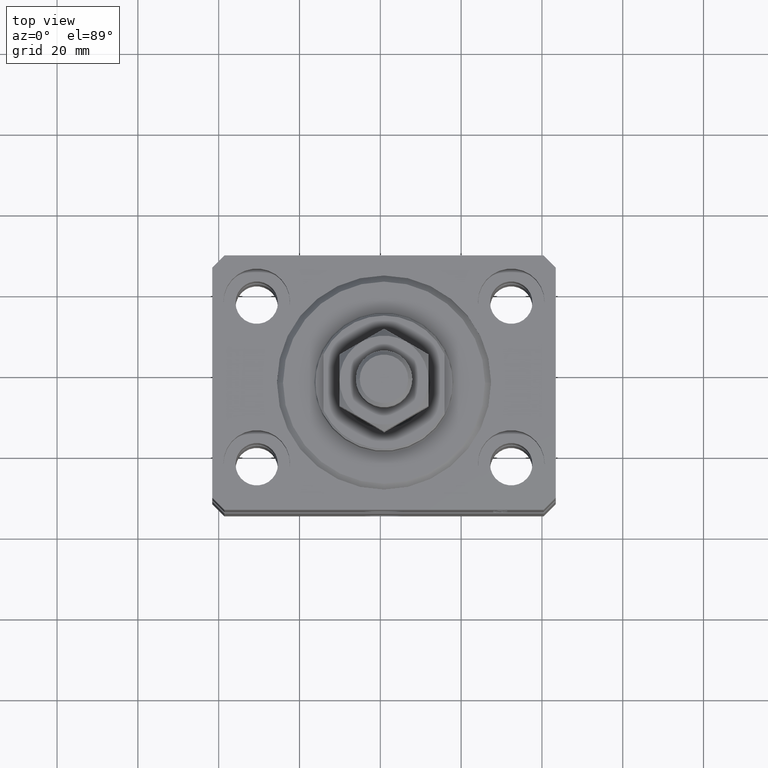
[diagram: clean part render]
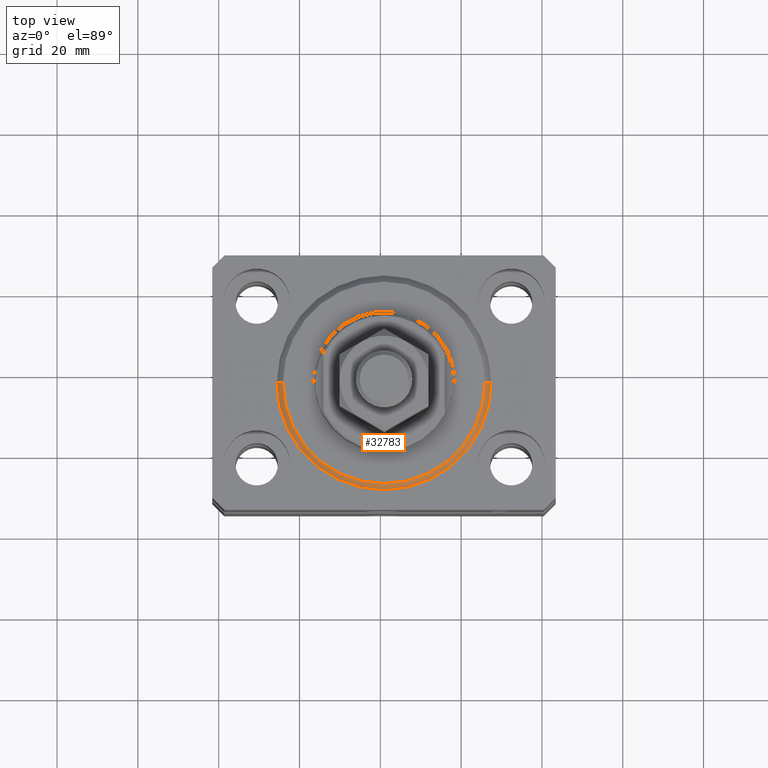
[diagram: same view with one face highlighted and labeled with its STEP entity id]
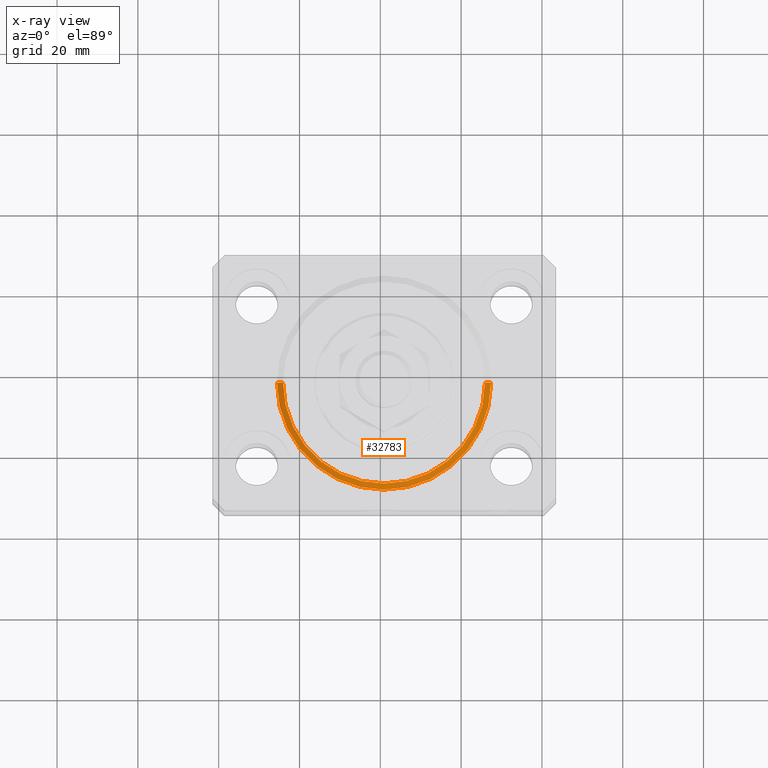
[diagram: x-ray of the same camera — body ghosted, the highlighted face saturated]
A machine part, top view. The second image highlights one B-rep face of the part: STEP entity #32783.
The next image is the same camera in x-ray: the body ghosted, the highlighted face saturated — about 0% of this face is hidden behind the body in this view.
In plain terms, the highlighted conical surface has half-angle 45 deg.
Its self-contained STEP definition (entity closure, byte-faithful):
#309 = VECTOR ( 'NONE', #5773, 1000.000000000000000 ) ;
#1334 = CARTESIAN_POINT ( 'NONE',  ( -26.50000000000000355, 0.000000000000000000, 1.500000000000046407 ) ) ;
#1956 = DIRECTION ( 'NONE',  ( -0.000000000000000000, -0.000000000000000000, 1.000000000000000000 ) ) ;
#3395 = CARTESIAN_POINT ( 'NONE',  ( -26.50000000000000355, 3.245314017740486554E-15, 1.500000000000046407 ) ) ;
#4027 = DIRECTION ( 'NONE',  ( -0.000000000000000000, -0.000000000000000000, 1.000000000000000000 ) ) ;
#5484 = FACE_OUTER_BOUND ( 'NONE', #28787, .T. ) ;
#5773 = DIRECTION ( 'NONE',  ( 0.7071067811865491270, 0.000000000000000000, 0.7071067811865459074 ) ) ;
#7619 = LINE ( 'NONE', #3395, #14797 ) ;
#8510 = ORIENTED_EDGE ( 'NONE', *, *, #16879, .F. ) ;
#10321 = CONICAL_SURFACE ( 'NONE', #13287, 26.50000000000000355, 0.7853981633974506105 ) ;
#10966 = CIRCLE ( 'NONE', #16967, 26.50000000000000355 ) ;
#11647 = CARTESIAN_POINT ( 'NONE',  ( -24.99999999999995026, 3.153465507804431248E-15, 0.000000000000000000 ) ) ;
#12191 = EDGE_CURVE ( 'NONE', #33180, #45445, #10966, .T. ) ;
#12217 = EDGE_CURVE ( 'NONE', #40067, #36818, #20704, .T. ) ;
#13287 = AXIS2_PLACEMENT_3D ( 'NONE', #34088, #1956, #16278 ) ;
#14797 = VECTOR ( 'NONE', #32456, 1000.000000000000000 ) ;
#15422 = ORIENTED_EDGE ( 'NONE', *, *, #12191, .F. ) ;
#16178 = DIRECTION ( 'NONE',  ( 1.000000000000000000, 0.000000000000000000, 0.000000000000000000 ) ) ;
#16278 = DIRECTION ( 'NONE',  ( 1.000000000000000000, 0.000000000000000000, 0.000000000000000000 ) ) ;
#16879 = EDGE_CURVE ( 'NONE', #36818, #33180, #7619, .T. ) ;
#16967 = AXIS2_PLACEMENT_3D ( 'NONE', #25356, #4027, #43416 ) ;
#18878 = ORIENTED_EDGE ( 'NONE', *, *, #26997, .T. ) ;
#20704 = CIRCLE ( 'NONE', #36393, 24.99999999999995026 ) ;
#22653 = CARTESIAN_POINT ( 'NONE',  ( 26.50000000000000355, 0.000000000000000000, 1.500000000000046407 ) ) ;
#23426 = CARTESIAN_POINT ( 'NONE',  ( 0.000000000000000000, 0.000000000000000000, 0.000000000000000000 ) ) ;
#25356 = CARTESIAN_POINT ( 'NONE',  ( 0.000000000000000000, 0.000000000000000000, 1.500000000000046407 ) ) ;
#26093 = ORIENTED_EDGE ( 'NONE', *, *, #12217, .F. ) ;
#26997 = EDGE_CURVE ( 'NONE', #40067, #45445, #27097, .T. ) ;
#27097 = LINE ( 'NONE', #22653, #309 ) ;
#28787 = EDGE_LOOP ( 'NONE', ( #8510, #26093, #18878, #15422 ) ) ;
#29545 = CARTESIAN_POINT ( 'NONE',  ( 26.50000000000000355, 3.245314017740485765E-15, 1.500000000000046407 ) ) ;
#32396 = CARTESIAN_POINT ( 'NONE',  ( 24.99999999999995026, 0.000000000000000000, 0.000000000000000000 ) ) ;
#32456 = DIRECTION ( 'NONE',  ( -0.7071067811865491270, 8.659560562354952580E-17, 0.7071067811865459074 ) ) ;
#32783 = ADVANCED_FACE ( 'NONE', ( #5484 ), #10321, .T. ) ;
#33180 = VERTEX_POINT ( 'NONE', #1334 ) ;
#34088 = CARTESIAN_POINT ( 'NONE',  ( 0.000000000000000000, 0.000000000000000000, 1.500000000000046407 ) ) ;
#36393 = AXIS2_PLACEMENT_3D ( 'NONE', #23426, #44784, #16178 ) ;
#36818 = VERTEX_POINT ( 'NONE', #11647 ) ;
#40067 = VERTEX_POINT ( 'NONE', #32396 ) ;
#43416 = DIRECTION ( 'NONE',  ( 1.000000000000000000, 0.000000000000000000, 0.000000000000000000 ) ) ;
#44784 = DIRECTION ( 'NONE',  ( -0.000000000000000000, -0.000000000000000000, -1.000000000000000000 ) ) ;
#45445 = VERTEX_POINT ( 'NONE', #29545 ) ;